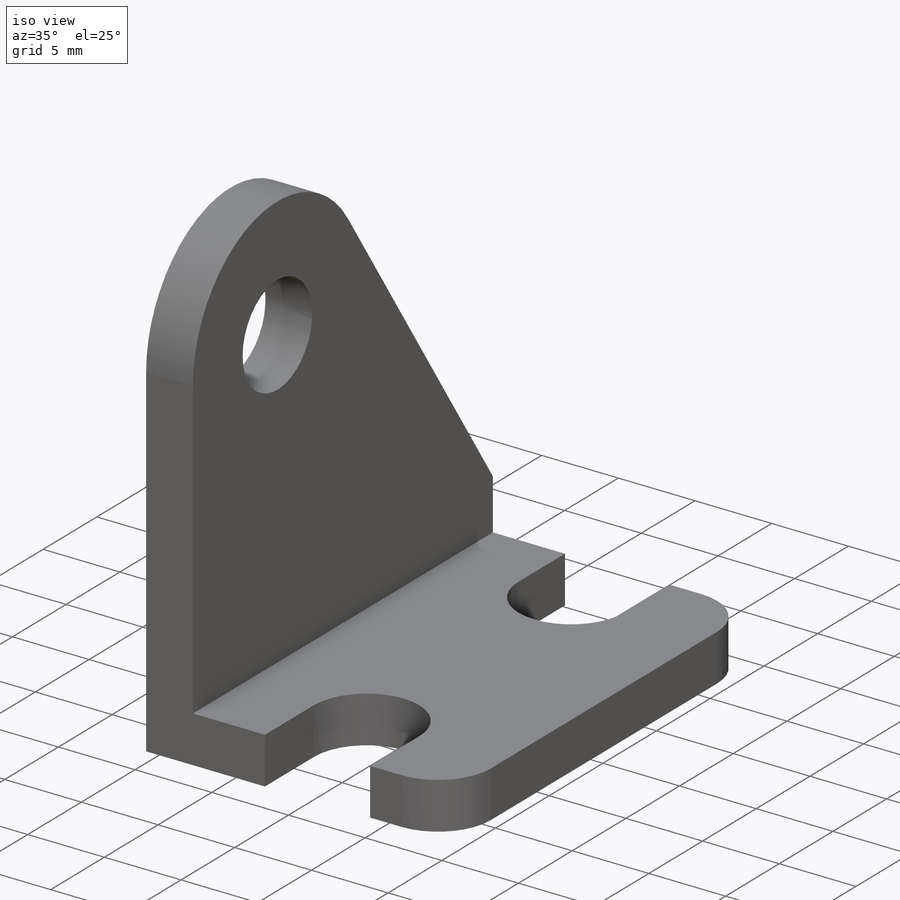
[diagram: iso view]
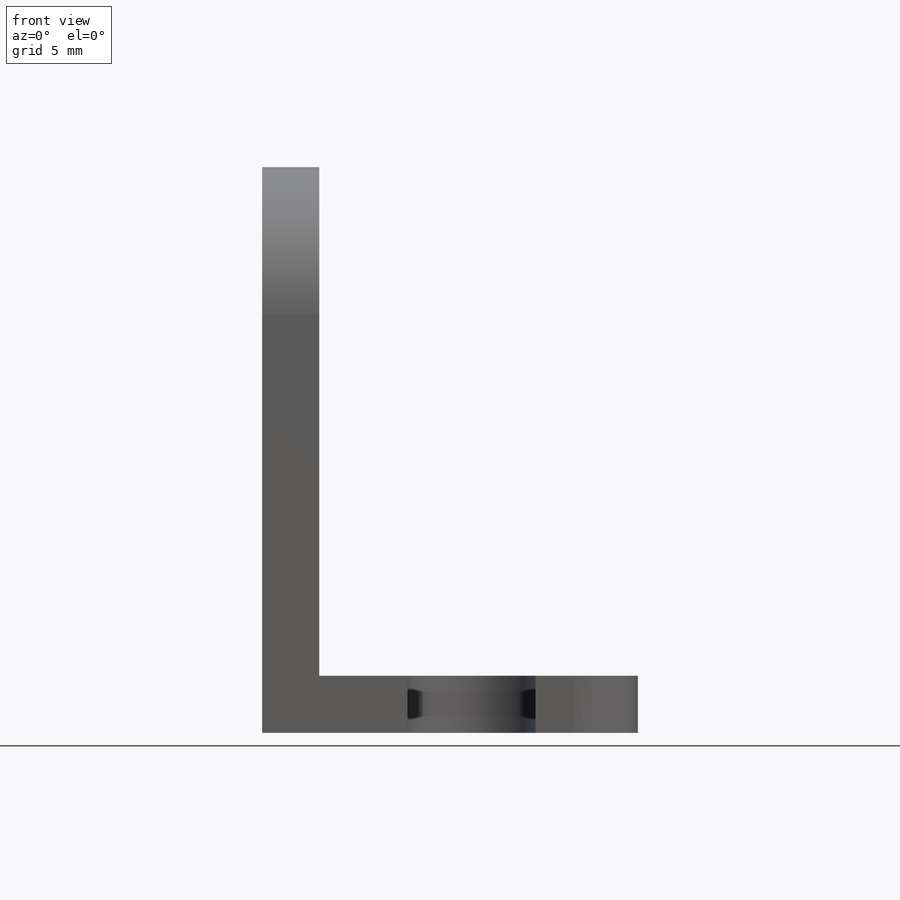
[diagram: front view]
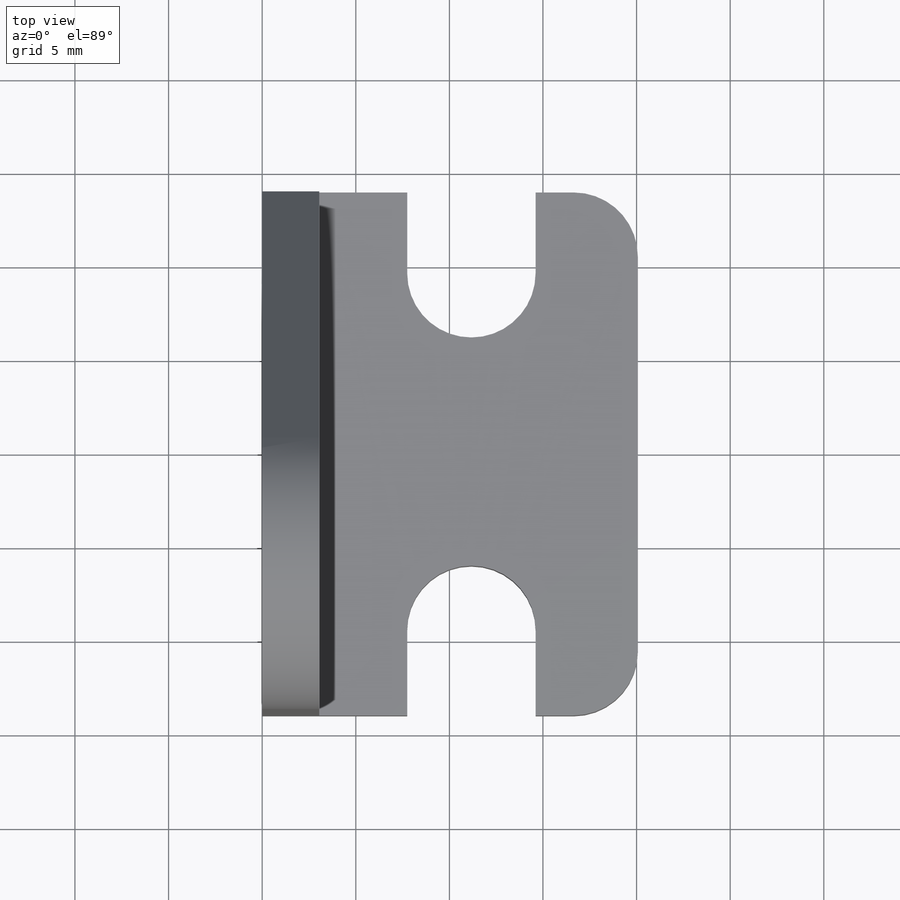
[diagram: top view]
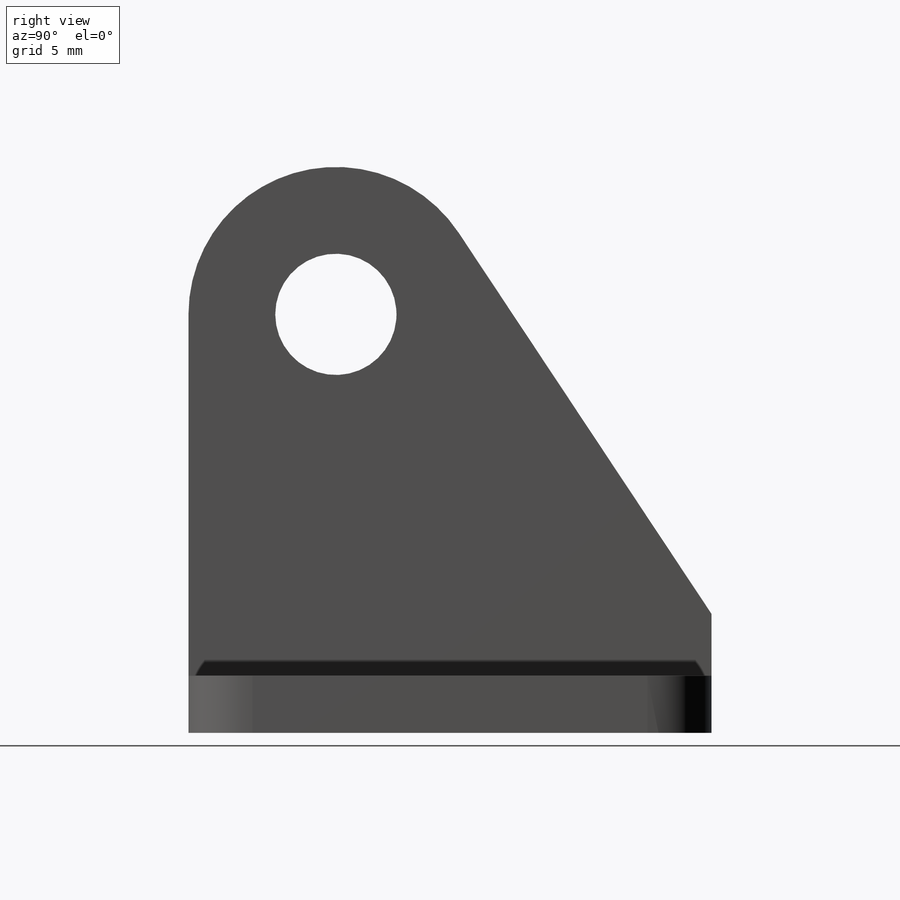
[diagram: right view]
SOLIDWORKS PART (.sldprt)
format: sldprt  version: not decoded by parser v0  size: 366,592 bytes
history: native  units: mm
features: sketch x3, extrude x3, material x1 (+14 scaffold rows collapsed)
feature tree (21):
  scaffold x14  (default folders/planes/origin — collapsed)
  material  "AISI 304"
  sketch  "Sketch2"  dims[J=27.94mm G or E=11.176mm H or F=20.066mm C or D=6.858mm A=19.05mm B Or J-A-B=4.572mm]
  extrude  "Base-Extrude"  Depth=3.048mm K=3.048mm
  sketch  "Sketch3"  dims[c1.P=6.477mm c1.N=7.874mm c1.D2=7.874mm c1.D3=7.874mm c1.D1=~9.46004mm c2.N=7.874mm c2.P=6.477mm c2.L=22.352mm c2.D1=~20.798848mm c3.D1=56.0deg c3.D2=30.226mm c4.D1=56.0mm c4.D3=22.098mm c4.D4=~13.300107mm c5.D4=56.0deg c6.D4=38.1mm c7.D4=46.0deg c8.D4=6.35mm c8.L=22.352mm c8.D1=~36.823936mm c8.D2=6.35mm c8.J=27.94mm]
  extrude  "FrontRib"  Depth=3.048mm K=3.048mm
  sketch  "Sketch4"  dims[c1.D1=6.477mm c1.D2=6.477mm c1.D3=6.477mm c1.N=7.874mm c1.P=6.477mm c2.D3=7.874mm c2.D4=6.477mm c3.D3=6.477mm c3.D1=7.874mm c3.D2=22.352mm c4.D3=29.972mm c4.D4=~13.960506mm c5.D4=56.0deg c6.D4=6.35mm c6.L=22.352mm]
  extrude  "RearRib"  Depth=3.048mm K=3.048mm
decode coverage: 6 of 6 modeling features carry decoded parameters
note: ~ marks probable driven/reference dimensions
note: suppression state not decoded; provenance and decode notes live in map.json
